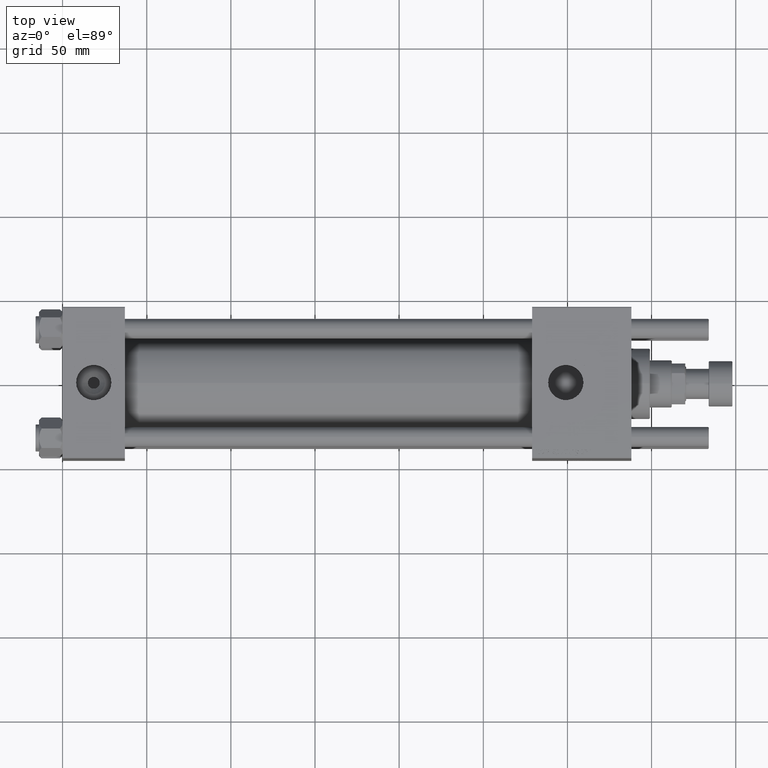
[diagram: clean part render]
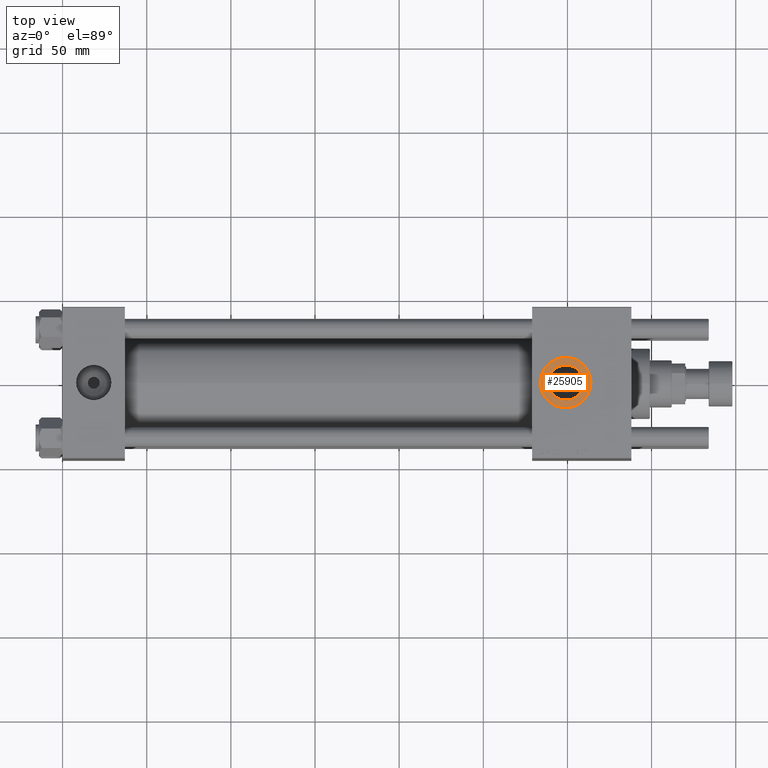
[diagram: same view with one face highlighted and labeled with its STEP entity id]
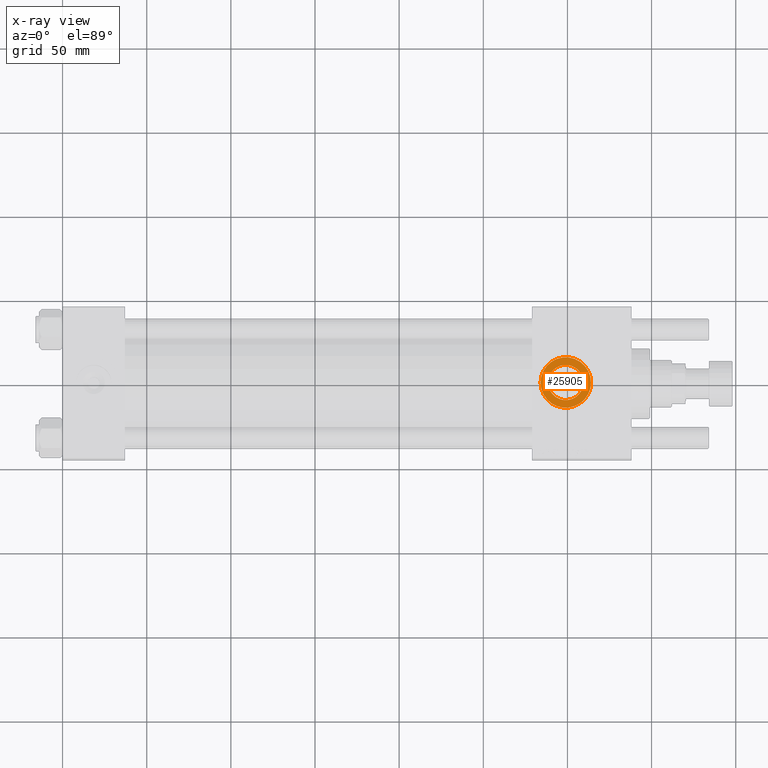
[diagram: x-ray of the same camera — body ghosted, the highlighted face saturated]
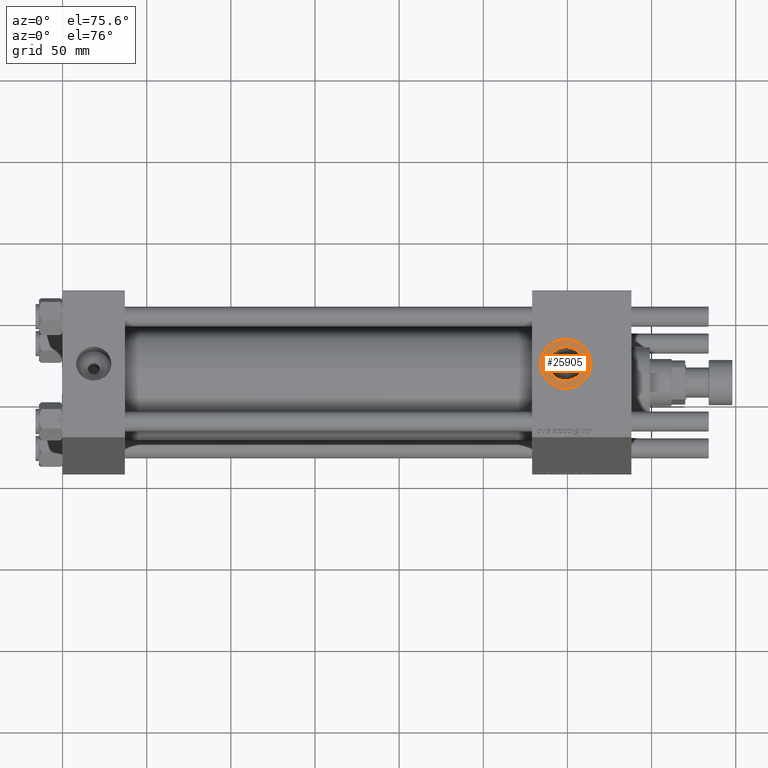
[diagram: same view with one face highlighted and labeled with its STEP entity id]
A machine part, top view. The second image highlights one B-rep face of the part: STEP entity #25905.
The next image is the same camera in x-ray: the body ghosted, the highlighted face saturated — about 0% of this face is hidden behind the body in this view.
A second angle (auxiliary view) of the same face is appended — the face is thin or edge-on in the first view.
In plain terms, the highlighted planar face has unit normal (0, 0, 1).
Its self-contained STEP definition (entity closure, byte-faithful):
#814 = CIRCLE ( 'NONE', #16016, 15.00000000000001421 ) ;
#1976 = FACE_OUTER_BOUND ( 'NONE', #43374, .T. ) ;
#2474 = CARTESIAN_POINT ( 'NONE',  ( 299.0000000000000000, -6.938893903907227589E-15, 44.79999999999999005 ) ) ;
#7066 = CIRCLE ( 'NONE', #37721, 10.47999999999998977 ) ;
#7560 = DIRECTION ( 'NONE',  ( -0.000000000000000000, -0.000000000000000000, -1.000000000000000000 ) ) ;
#8238 = DIRECTION ( 'NONE',  ( -0.000000000000000000, -0.000000000000000000, -1.000000000000000000 ) ) ;
#8529 = CARTESIAN_POINT ( 'NONE',  ( 299.0000000000000000, -6.938893903907227589E-15, 44.79999999999999005 ) ) ;
#8939 = ORIENTED_EDGE ( 'NONE', *, *, #51478, .T. ) ;
#10375 = CARTESIAN_POINT ( 'NONE',  ( 299.0000000000000000, -6.938893903907227589E-15, 44.79999999999999005 ) ) ;
#11014 = VERTEX_POINT ( 'NONE', #38174 ) ;
#11391 = VERTEX_POINT ( 'NONE', #16737 ) ;
#13738 = AXIS2_PLACEMENT_3D ( 'NONE', #10375, #28668, #46934 ) ;
#15177 = PLANE ( 'NONE',  #13738 ) ;
#16016 = AXIS2_PLACEMENT_3D ( 'NONE', #37674, #18203, #28383 ) ;
#16737 = CARTESIAN_POINT ( 'NONE',  ( 284.0000000000000000, -5.101923705186193267E-15, 44.79999999999999005 ) ) ;
#17777 = DIRECTION ( 'NONE',  ( 0.000000000000000000, 0.000000000000000000, 1.000000000000000000 ) ) ;
#18203 = DIRECTION ( 'NONE',  ( 0.000000000000000000, 0.000000000000000000, 1.000000000000000000 ) ) ;
#24621 = AXIS2_PLACEMENT_3D ( 'NONE', #46212, #17777, #45624 ) ;
#25905 = ADVANCED_FACE ( 'NONE', ( #43037, #1976 ), #15177, .T. ) ;
#26496 = CIRCLE ( 'NONE', #24621, 15.00000000000001421 ) ;
#27116 = DIRECTION ( 'NONE',  ( 1.000000000000000000, 0.000000000000000000, 0.000000000000000000 ) ) ;
#27320 = CARTESIAN_POINT ( 'NONE',  ( 288.5199999999999818, -6.938893903907227589E-15, 44.79999999999999005 ) ) ;
#28383 = DIRECTION ( 'NONE',  ( 1.000000000000000000, 0.000000000000000000, 0.000000000000000000 ) ) ;
#28668 = DIRECTION ( 'NONE',  ( 0.000000000000000000, 0.000000000000000000, 1.000000000000000000 ) ) ;
#29337 = ORIENTED_EDGE ( 'NONE', *, *, #39568, .T. ) ;
#33213 = AXIS2_PLACEMENT_3D ( 'NONE', #2474, #7560, #44113 ) ;
#35807 = ORIENTED_EDGE ( 'NONE', *, *, #41243, .T. ) ;
#36218 = EDGE_LOOP ( 'NONE', ( #29337, #35807 ) ) ;
#37674 = CARTESIAN_POINT ( 'NONE',  ( 299.0000000000000000, -6.938893903907227589E-15, 44.79999999999999005 ) ) ;
#37721 = AXIS2_PLACEMENT_3D ( 'NONE', #8529, #8238, #27116 ) ;
#38174 = CARTESIAN_POINT ( 'NONE',  ( 314.0000000000000000, -6.938893903907227589E-15, 44.79999999999999005 ) ) ;
#38235 = ORIENTED_EDGE ( 'NONE', *, *, #56335, .T. ) ;
#39568 = EDGE_CURVE ( 'NONE', #49700, #51193, #43713, .T. ) ;
#41243 = EDGE_CURVE ( 'NONE', #51193, #49700, #7066, .T. ) ;
#43037 = FACE_BOUND ( 'NONE', #36218, .T. ) ;
#43374 = EDGE_LOOP ( 'NONE', ( #8939, #38235 ) ) ;
#43713 = CIRCLE ( 'NONE', #33213, 10.47999999999998977 ) ;
#44113 = DIRECTION ( 'NONE',  ( 1.000000000000000000, 0.000000000000000000, 0.000000000000000000 ) ) ;
#45624 = DIRECTION ( 'NONE',  ( 1.000000000000000000, 0.000000000000000000, 0.000000000000000000 ) ) ;
#46212 = CARTESIAN_POINT ( 'NONE',  ( 299.0000000000000000, -6.938893903907227589E-15, 44.79999999999999005 ) ) ;
#46282 = CARTESIAN_POINT ( 'NONE',  ( 309.4799999999999613, -5.655464058400803678E-15, 44.79999999999999005 ) ) ;
#46934 = DIRECTION ( 'NONE',  ( 1.000000000000000000, 0.000000000000000000, -0.000000000000000000 ) ) ;
#49700 = VERTEX_POINT ( 'NONE', #27320 ) ;
#51193 = VERTEX_POINT ( 'NONE', #46282 ) ;
#51478 = EDGE_CURVE ( 'NONE', #11014, #11391, #26496, .T. ) ;
#56335 = EDGE_CURVE ( 'NONE', #11391, #11014, #814, .T. ) ;